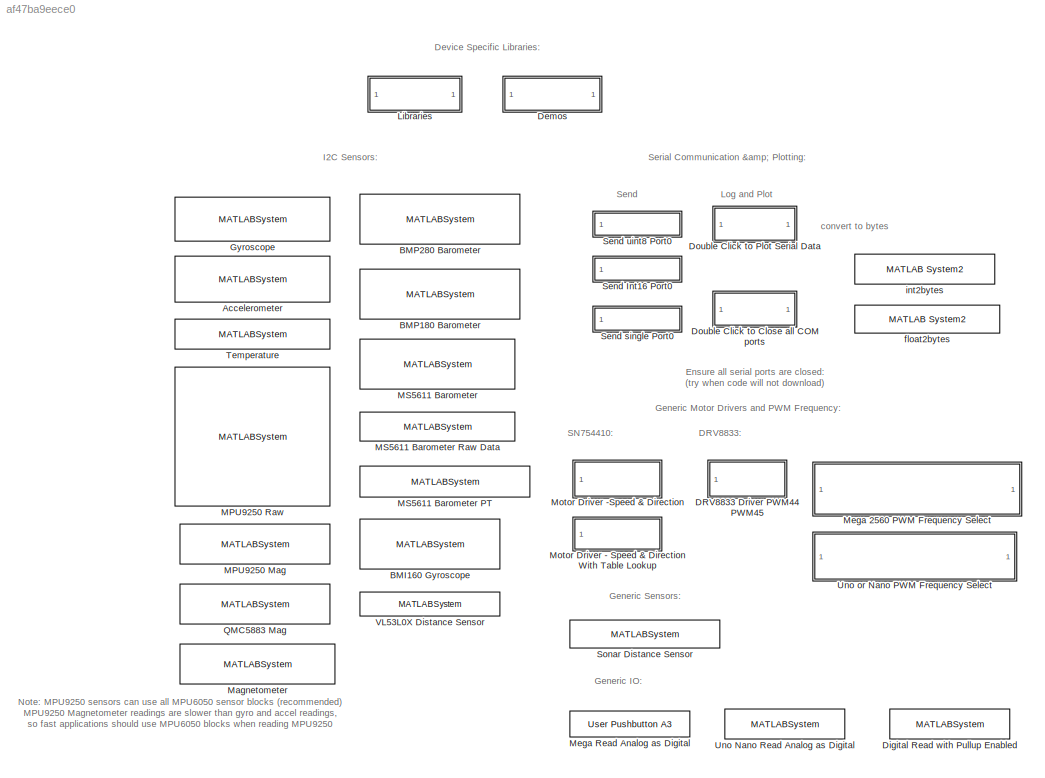
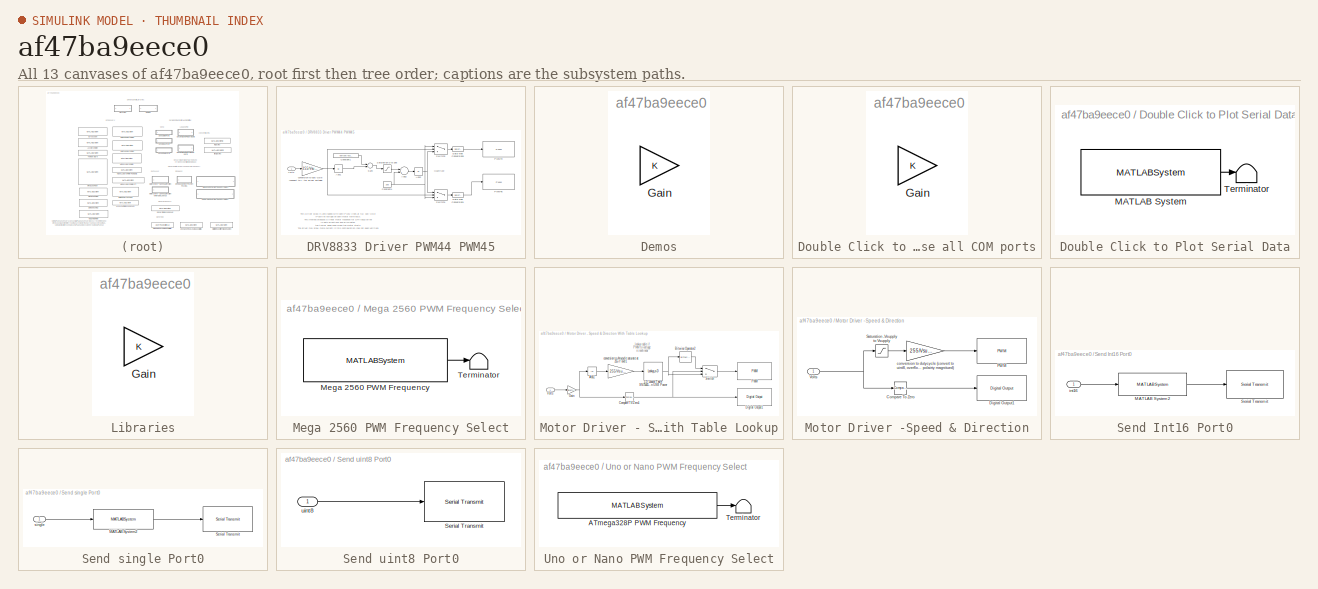
[diagram: thumbnail index - all 13 canvases of the model, root first then tree order]
MODEL slx_af47ba9eece0
KIND library
CONFIG AbsTol = auto
CONFIG FixedStep = auto
CONFIG MaxStep = auto
CONFIG MinStep = auto
CONFIG PostLoadFcn = setsysloc(bdroot)
CONFIG RelTol = 1e-3
CONFIG SampleTimeConstraint = Unconstrained
CONFIG Solver = ode45
CONFIG SolverMode = Auto
CONFIG SolverName = ode45
CONFIG StartFcn = open_system('MinSegLibrary','force')
CONFIG StartTime = 0.0
CONFIG StopTime = 10.0
BLOCK [MATLABSystem] Accelerometer
  MaskDisplay = disp('soMPU6050Accel');\nport_label('output',1,'xaccel');\nport_label('output',2,'yaccel');\nport_label('output',3,'zaccel');
  MaskType = soMPU6050Accel
  Ports = [0, 3]
  SimulateUsing = Code generation
  System = soMPU6050Accel
BLOCK [MATLABSystem] BMI160 Gyroscope
  MaskDisplay = disp('soBMI160Gyro');\nport_label('output',1,'xvel');\nport_label('output',2,'yvel');\nport_label('output',3,'zvel');
  MaskType = soBMI160Gyro
  Ports = [0, 3]
  System = soBMI160Gyro
BLOCK [MATLABSystem] BMP180 Barometer
  MaskDisplay = disp('soBMP180');\nport_label('output',1,'pres_Pa');\nport_label('output',2,'absAlt_m');\nport_label('output',3,'temp_C');
  MaskType = soBMP180
  Ports = [0, 3]
  SimulateUsing = Code generation
  System = soBMP180
BLOCK [MATLABSystem] BMP280 Barometer
  MaskDisplay = disp('soBMP280');\nport_label('output',1,'pres_Pa');\nport_label('output',2,'absAlt_m');\nport_label('output',3,'temp_C');
  MaskType = soBMP280
  Ports = [0, 3]
  SimulateUsing = Code generation
  System = soBMP280
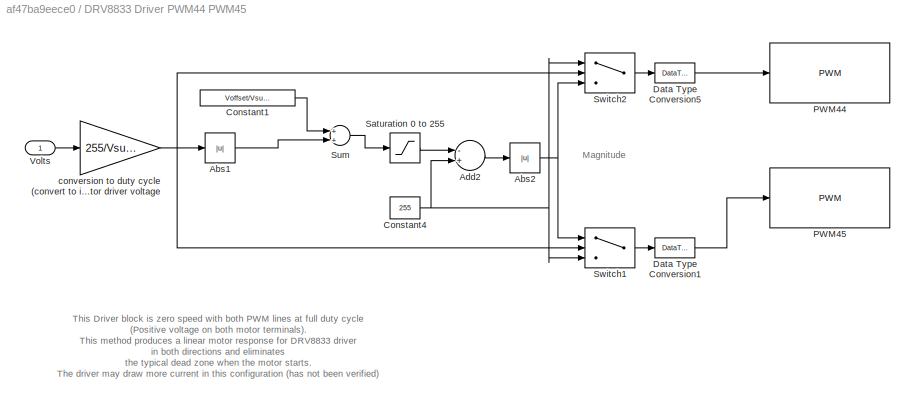
BLOCK [SubSystem] DRV8833 Driver PWM44 PWM45
  Ports = [1]
  RequestExecContextInheritance = off
BLOCK [Abs] DRV8833 Driver PWM44 PWM45/Abs1
  SaturateOnIntegerOverflow = off
BLOCK [Abs] DRV8833 Driver PWM44 PWM45/Abs2
  SaturateOnIntegerOverflow = off
BLOCK [Sum] DRV8833 Driver PWM44 PWM45/Add2
  InputSameDT = off
  Inputs = -+
  OutDataTypeStr = Inherit: Inherit via internal rule
  Ports = [2, 1]
  SaturateOnIntegerOverflow = off
BLOCK [Constant] DRV8833 Driver PWM44 PWM45/Constant1
  Value = Voffset/Vsupply*255
BLOCK [Constant] DRV8833 Driver PWM44 PWM45/Constant4
  Value = 255
BLOCK [DataTypeConversion] DRV8833 Driver PWM44 PWM45/Data Type Conversion1
  OutDataTypeStr = uint8
  RndMeth = Floor
  SaturateOnIntegerOverflow = off
BLOCK [DataTypeConversion] DRV8833 Driver PWM44 PWM45/Data Type Conversion5
  OutDataTypeStr = uint8
  RndMeth = Floor
  SaturateOnIntegerOverflow = off
BLOCK [Reference] DRV8833 Driver PWM44 PWM45/PWM44  REF=arduinolib/PWM
  Ports = [1]
  SourceBlock = arduinolib/PWM
  SourceType = Arduino PWM
  blockPlatform = arduino
  pinNumber = 44
BLOCK [Reference] DRV8833 Driver PWM44 PWM45/PWM45  REF=arduinolib/PWM
  Ports = [1]
  SourceBlock = arduinolib/PWM
  SourceType = Arduino PWM
  blockPlatform = arduino
  pinNumber = 45
BLOCK [Saturate] DRV8833 Driver PWM44 PWM45/Saturation 0 to 255
  InputPortMap = u0
  LowerLimit = 0
  Ports = [1, 1]
  UpperLimit = 255
BLOCK [Sum] DRV8833 Driver PWM44 PWM45/Sum
  InputSameDT = off
  OutDataTypeStr = Inherit: Inherit via internal rule
  Ports = [2, 1]
  SaturateOnIntegerOverflow = off
BLOCK [Switch] DRV8833 Driver PWM44 PWM45/Switch1
  InputSameDT = off
  SaturateOnIntegerOverflow = off
BLOCK [Switch] DRV8833 Driver PWM44 PWM45/Switch2
  InputSameDT = off
  SaturateOnIntegerOverflow = off
BLOCK [Inport] DRV8833 Driver PWM44 PWM45/Volts
  IconDisplay = Port number
BLOCK [Gain] DRV8833 Driver PWM44 PWM45/conversion to duty cycle (convert to int) denominator is motor driver voltage
  Gain = 255/Vsupply
  OutDataTypeStr = int16
  ParamDataTypeStr = Inherit: Inherit via internal rule
  SaturateOnIntegerOverflow = off
BLOCK [SubSystem] Demos
  Commented = on
  OpenFcn = Examples
  Ports = []
  RequestExecContextInheritance = off
BLOCK [Gain] Demos/Gain
  OutDataTypeStr = Inherit: Inherit via internal rule
  ParamDataTypeStr = Inherit: Inherit via internal rule
  SaturateOnIntegerOverflow = off
BLOCK [MATLABSystem] Digital Read with Pullup Enabled
  MaskDisplay = disp('Digital Pullup Read');\nport_label('output',1,'y');
  MaskType = soDigitalPullupRead
  Pin = 4
  Ports = [0, 1]
  System = soDigitalPullupRead
BLOCK [SubSystem] Double Click to Close all COM ports
  OpenFcn = g=msgbox('Closing all COM ports');\ndisp('closing all COM ports')\nnewobjs=instrfindall\n% Close them!\ntry,\n    fclose(newobjs);\n    delete(newobjs);\ncatch, end\npause(1), close(g);
  Ports = []
  RequestExecContextInheritance = off
BLOCK [Gain] Double Click to Close all COM ports/Gain
  OutDataTypeStr = Inherit: Inherit via internal rule
  ParamDataTypeStr = Inherit: Inherit via internal rule
  SaturateOnIntegerOverflow = off
BLOCK [SubSystem] Double Click to Plot Serial Data
  Ports = []
  RequestExecContextInheritance = off
BLOCK [MATLABSystem] Double Click to Plot Serial Data/MATLAB System
  MaskDisplay = disp('Send Data Start String');\nport_label('output',1,'y');
  MaskType = soSendDataStartString
  Ports = [0, 1]
  System = soSendDataStartString
  is_post_2015a = ~verLessThan( 'matlab', '8.6' )
BLOCK [Terminator] Double Click to Plot Serial Data/Terminator
BLOCK [MATLABSystem] Gyroscope
  DLPFmode = 0
  MaskDisplay = disp('soMPU6050Gyro');\nport_label('output',1,'xvel');\nport_label('output',2,'yvel');\nport_label('output',3,'zvel');
  MaskType = soMPU6050Gyro
  Ports = [0, 3]
  System = soMPU6050Gyro
BLOCK [SubSystem] Libraries
  OpenFcn = HardwareLibraries
  Ports = []
  RequestExecContextInheritance = off
BLOCK [Gain] Libraries/Gain
  OutDataTypeStr = Inherit: Inherit via internal rule
  ParamDataTypeStr = Inherit: Inherit via internal rule
  SaturateOnIntegerOverflow = off
BLOCK [MATLABSystem] MPU9250 Mag
  MaskDisplay = disp('soMPU9250Mag');\nport_label('output',1,'xmag');\nport_label('output',2,'ymag');\nport_label('output',3,'zmag');
  MaskType = soMPU9250Mag
  Ports = [0, 3]
  SimulateUsing = Code generation
  System = soMPU9250Mag
BLOCK [MATLABSystem] MPU9250 Raw
  MaskDisplay = disp('soMPU9250RAW');\nport_label('output',1,'xaccel');\nport_label('output',2,'yaccel');\nport_label('output',3,'zaccel');\nport_label('output',4,'xgyro');\nport_label('output',5,'ygyro');\nport_label('output',6,'zgyro');\nport_label('output',7,'xmag');\nport_label('output',8,'ymag');\nport_label('output',9,'zmag');\nport_label('output',10,'temp');
  MaskType = soMPU9250RAW
  Ports = [0, 10]
  SimulateUsing = Code generation
  System = soMPU9250RAW
BLOCK [MATLABSystem] MS5611 Barometer
  MaskDisplay = disp('soMS5611');\nport_label('output',1,'pres_Pa');\nport_label('output',2,'temp_C');\nport_label('output',3,'absAlt_m');\nport_label('output',4,'relAlt_m');
  MaskType = soMS5611
  Ports = [0, 4]
  SimulateUsing = Code generation
  System = soMS5611
BLOCK [MATLABSystem] MS5611 Barometer PT
  MaskDisplay = disp('soMS5611BaroPT');\nport_label('output',1,'pres_Pa');\nport_label('output',2,'temp_C');
  MaskType = soMS5611BaroPT
  Ports = [0, 2]
  SimulateUsing = Code generation
  System = soMS5611BaroPT
BLOCK [MATLABSystem] MS5611 Barometer Raw Data
  MaskDisplay = disp('soMS5611BaroRAW');\nport_label('output',1,'pres');\nport_label('output',2,'temp');
  MaskType = soMS5611BaroRAW
  Ports = [0, 2]
  SimulateUsing = Code generation
  System = soMS5611BaroRAW
BLOCK [MATLABSystem] Magnetometer
  MaskDisplay = disp('soHMC5883L');\nport_label('output',1,'xmag');\nport_label('output',2,'ymag');\nport_label('output',3,'zmag');
  MaskType = soHMC5883L
  Ports = [0, 3]
  SimulateUsing = Code generation
  System = soHMC5883L
BLOCK [SubSystem] Mega 2560 PWM Frequency Select
  Ports = []
  RequestExecContextInheritance = off
BLOCK [MATLABSystem] Mega 2560 PWM Frequency Select/Mega 2560 PWM Frequency
  MaskDisplay = disp('Mega PWM Frequency Select');\nport_label('output',1,'y');
  MaskType = PWMselect
  PWMFSelect = Frequency
  PWMTimer = Timer
  Ports = [0, 1]
  System = PWMselect
BLOCK [Terminator] Mega 2560 PWM Frequency Select/Terminator
BLOCK [Reference] Mega Read Analog as Digital  REF=MinSegLibrary_M2V3/User Pushbutton A3
  Pin = 3
  Ports = [0, 1]
  SourceBlock = MinSegLibrary_M2V3/User Pushbutton A3
  SourceType = soDAnalogRead
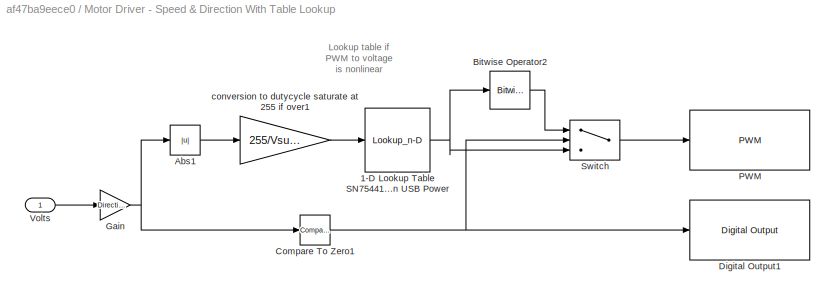
BLOCK [SubSystem] Motor Driver - Speed & Direction With Table Lookup
  Ports = [1]
  RequestExecContextInheritance = off
BLOCK [Lookup_n-D] Motor Driver - Speed & Direction With Table Lookup/1-D Lookup Table SN754410 Maxon USB Power
  BreakpointsForDimension1 = [0 3 110 255]
  BreakpointsForDimension1DataTypeStr = uint8
  ExtrapMethod = Clip
  InternalRulePriority = Speed
  NumberOfTableDimensions = 1
  OutDataTypeStr = uint8
  Ports = [1, 1]
  RndMeth = Simplest
  SaturateOnIntegerOverflow = on
  Table = [0 13 28 255]
  TableDataTypeStr = uint8
  UseLastTableValue = on
BLOCK [Abs] Motor Driver - Speed & Direction With Table Lookup/Abs1
  SaturateOnIntegerOverflow = off
BLOCK [Reference] Motor Driver - Speed & Direction With Table Lookup/Bitwise Operator2  REF=simulink/Logic and Bit
Operations/Bitwise
Operator
  BitMask = bin2dec('11011001')
  BitMaskRealWorld = Stored Integer
  NumInputPorts = 1
  Ports = [1, 1]
  SourceBlock = simulink/Logic and Bit\nOperations/Bitwise\nOperator
  SourceType = Bitwise Operator
  UseBitMask = off
  logicop = NOT
BLOCK [Reference] Motor Driver - Speed & Direction With Table Lookup/Compare To Zero1  REF=simulink/Logic and Bit
Operations/Compare
To Zero
  OutDataTypeStr = boolean
  Ports = [1, 1]
  SourceBlock = simulink/Logic and Bit\nOperations/Compare\nTo Zero
  SourceType = Compare To Zero
  ZeroCross = on
  relop = <
BLOCK [Reference] Motor Driver - Speed & Direction With Table Lookup/Digital Output1  REF=arduinolib/Digital Output
  Ports = [1]
  SourceBlock = arduinolib/Digital Output
  SourceType = Arduino Digital Output
  blockPlatform = arduino
  pinNumber = DigitalPin
BLOCK [Gain] Motor Driver - Speed & Direction With Table Lookup/Gain
  Gain = Direction
  OutDataTypeStr = Inherit: Inherit via internal rule
  ParamDataTypeStr = Inherit: Inherit via internal rule
  SaturateOnIntegerOverflow = off
BLOCK [Reference] Motor Driver - Speed & Direction With Table Lookup/PWM  REF=arduinolib/PWM
  Ports = [1]
  SourceBlock = arduinolib/PWM
  SourceType = Arduino PWM
  blockPlatform = arduino
  pinNumber = PWMPin
BLOCK [Switch] Motor Driver - Speed & Direction With Table Lookup/Switch
  Criteria = u2 ~= 0
  InputSameDT = off
  SaturateOnIntegerOverflow = off
BLOCK [Inport] Motor Driver - Speed & Direction With Table Lookup/Volts
  IconDisplay = Port number
BLOCK [Gain] Motor Driver - Speed & Direction With Table Lookup/conversion to dutycycle saturate at 255 if over1
  Gain = 255/Vsupply
  OutDataTypeStr = uint8
  ParamDataTypeStr = Inherit: Inherit via internal rule
BLOCK [SubSystem] Motor Driver -Speed & Direction
  Ports = [1]
  RequestExecContextInheritance = off
BLOCK [Reference] Motor Driver -Speed & Direction/Compare To Zero  REF=simulink/Logic and Bit
Operations/Compare
To Zero
  OutDataTypeStr = boolean
  Ports = [1, 1]
  SourceBlock = simulink/Logic and Bit\nOperations/Compare\nTo Zero
  SourceType = Compare To Zero
  ZeroCross = on
  relop = <
BLOCK [Reference] Motor Driver -Speed & Direction/Digital Output1  REF=arduinolib/Digital Output
  Ports = [1]
  SourceBlock = arduinolib/Digital Output
  SourceType = Arduino Digital Output
  blockPlatform = arduino
  pinNumber = DigatlPin
BLOCK [Reference] Motor Driver -Speed & Direction/PWM  REF=arduinolib/PWM
  Ports = [1]
  SourceBlock = arduinolib/PWM
  SourceType = Arduino PWM
  blockPlatform = arduino
  pinNumber = PWMPin
BLOCK [Saturate] Motor Driver -Speed & Direction/Saturation -Vsupply to Vsupply
  InputPortMap = u0
  LowerLimit = -Vsupply
  OutDataTypeStr = single
  Ports = [1, 1]
  UpperLimit = Vsupply
BLOCK [Inport] Motor Driver -Speed & Direction/Volts
  IconDisplay = Port number
BLOCK [Gain] Motor Driver -Speed & Direction/conversion to dutycycle (convert to uint8, overflow will provide reverse polairty magnitued)
  Gain = 255/Vsupply
  OutDataTypeStr = uint8
  ParamDataTypeStr = Inherit: Inherit via internal rule
  SaturateOnIntegerOverflow = off
BLOCK [MATLABSystem] QMC5883 Mag
  MaskDisplay = disp('soQMC5883L');\nport_label('output',1,'xmag');\nport_label('output',2,'ymag');\nport_label('output',3,'zmag');
  MaskType = soQMC5883L
  Ports = [0, 3]
  SimulateUsing = Code generation
  System = soQMC5883L
BLOCK [SubSystem] Send Int16 Port0
  Ports = [1]
  RequestExecContextInheritance = off
BLOCK [MATLABSystem] Send Int16 Port0/MATLAB System2
  MaskDisplay = disp('so_int2bytes');\nport_label('input',1,'int_in');\nport_label('output',1,'out');
  MaskType = so_int2bytes
  Ports = [1, 1]
  SimulateUsing = Code generation
  System = so_int2bytes
BLOCK [Reference] Send Int16 Port0/Serial Transmit  REF=arduinolib/Serial Transmit
  Ports = [1]
  SourceBlock = arduinolib/Serial Transmit
  SourceType = Arduino Serial Transmit
  blockPlatform = arduino
  portNumber = 0
BLOCK [Inport] Send Int16 Port0/int16
  IconDisplay = Port number
BLOCK [SubSystem] Send single Port0
  Ports = [1]
  RequestExecContextInheritance = off
BLOCK [MATLABSystem] Send single Port0/MATLAB System2
  MaskDisplay = disp('so_float2bytes');\nport_label('input',1,'fin');\nport_label('output',1,'out');
  MaskType = so_float2bytes
  Ports = [1, 1]
  SimulateUsing = Code generation
  System = so_float2bytes
BLOCK [Reference] Send single Port0/Serial Transmit  REF=arduinolib/Serial Transmit
  Ports = [1]
  SourceBlock = arduinolib/Serial Transmit
  SourceType = Arduino Serial Transmit
  blockPlatform = arduino
  portNumber = 0
BLOCK [Inport] Send single Port0/single
  IconDisplay = Port number
  LockScale = on
  OutDataTypeStr = single
BLOCK [SubSystem] Send uint8 Port0
  Ports = [1]
  RequestExecContextInheritance = off
BLOCK [Reference] Send uint8 Port0/Serial Transmit  REF=arduinolib/Serial Transmit
  Ports = [1]
  SourceBlock = arduinolib/Serial Transmit
  SourceType = Arduino Serial Transmit
  blockPlatform = arduino
  portNumber = 0
BLOCK [Inport] Send uint8 Port0/uint8
  IconDisplay = Port number
BLOCK [MATLABSystem] Sonar Distance Sensor
  EchoPin = 8
  MaskDisplay = disp('soHCSR04Sonar');\nport_label('output',1,'d_cm');
  MaskType = soHCSR04Sonar
  Ports = [0, 1]
  Sonar = 1
  System = soHCSR04Sonar
  TrigPin = 7
BLOCK [MATLABSystem] Temperature
  MaskDisplay = disp('soMPU6050Temp');\nport_label('output',1,'temp');
  MaskType = soMPU6050Temp
  Ports = [0, 1]
  SimulateUsing = Code generation
  System = soMPU6050Temp
BLOCK [MATLABSystem] Uno Nano Read Analog as Digital
  MaskDisplay = disp('Analog Digital Read');\nport_label('output',1,'y');
  MaskType = soDAnalogReadNano
  Pin = 2
  Ports = [0, 1]
  System = soDAnalogReadNano
BLOCK [SubSystem] Uno or Nano PWM Frequency Select
  Ports = []
  RequestExecContextInheritance = off
BLOCK [MATLABSystem] Uno or Nano PWM Frequency Select/ATmega328P PWM Frequency
  MaskDisplay = disp('ATmega328P PWM Frequency Select');\nport_label('output',1,'y');
  MaskType = PWMselect_uno_nano
  PWMFSelect = Frequency
  PWMTimer = Timer
  Ports = [0, 1]
  System = PWMselect_uno_nano
BLOCK [Terminator] Uno or Nano PWM Frequency Select/Terminator
BLOCK [MATLABSystem] VL53L0X Distance Sensor
  MaskDisplay = disp('soVL53L0X');\nport_label('output',1,'d_mm');
  MaskType = soVL53L0X
  Ports = [0, 1]
  SimulateUsing = Code generation
  System = soVL53L0X
BLOCK [Reference] float2bytes  REF=RASPlib/Send single Port0/MATLAB System2
  Ports = [1, 1]
  SimulateUsing = Code generation
  SourceBlock = RASPlib/Send single Port0/MATLAB System2
  SourceType = so_float2bytes
BLOCK [Reference] int2bytes  REF=RASPlib/Send Int16 Port0/MATLAB System2
  Ports = [1, 1]
  SimulateUsing = Code generation
  SourceBlock = RASPlib/Send Int16 Port0/MATLAB System2
  SourceType = so_int2bytes
ANNOTATION (root): Generic IO:
ANNOTATION (root): Generic Motor Drivers and PWM Frequency:
ANNOTATION (root): Generic Sensors:
ANNOTATION (root): Serial Communication & Plotting:
ANNOTATION (root): DRV8833:
ANNOTATION (root): Device Specific Libraries:
ANNOTATION (root): Ensure all serial ports are closed: (try when code will not download)
ANNOTATION (root): I2C Sensors:
ANNOTATION (root): Log and Plot
ANNOTATION (root): Note: MPU9250 sensors can use all MPU6050 sensor blocks (recommended) MPU9250 Magnetometer readings are slower than gyro and accel readings, so fast applications should use MPU6050 blocks when reading MPU9250
ANNOTATION (root): SN754410:
ANNOTATION (root): Send
ANNOTATION (root): convert to bytes
ANNOTATION DRV8833 Driver PWM44 PWM45: Magnitude
ANNOTATION DRV8833 Driver PWM44 PWM45: This Driver block is zero speed with both PWM lines at full duty cycle (Positive voltage on both motor terminals). This method produces a linear motor response for DRV8833 driver in both directions and eliminates the typical dead zone when the motor starts. The driver may draw more current in this configuration (has not been verified) The SN754410 driver this has no effect, so the driver could alt...<+76ch>
ANNOTATION Motor Driver - Speed & Direction With Table Lookup: Lookup table if PWM to voltage is nonlinear
LINE DRV8833 Driver PWM44 PWM45/Abs1:1 -> DRV8833 Driver PWM44 PWM45/Sum:2
NET DRV8833 Driver PWM44 PWM45/Abs2:1 -> DRV8833 Driver PWM44 PWM45/Switch1:1, DRV8833 Driver PWM44 PWM45/Switch2:3
LINE DRV8833 Driver PWM44 PWM45/Add2:1 -> DRV8833 Driver PWM44 PWM45/Abs2:1
LINE DRV8833 Driver PWM44 PWM45/Constant1:1 -> DRV8833 Driver PWM44 PWM45/Sum:1
NET DRV8833 Driver PWM44 PWM45/Constant4:1 -> DRV8833 Driver PWM44 PWM45/Add2:2, DRV8833 Driver PWM44 PWM45/Switch1:3, DRV8833 Driver PWM44 PWM45/Switch2:1
LINE DRV8833 Driver PWM44 PWM45/Data Type Conversion1:1 -> DRV8833 Driver PWM44 PWM45/PWM45:1
LINE DRV8833 Driver PWM44 PWM45/Data Type Conversion5:1 -> DRV8833 Driver PWM44 PWM45/PWM44:1
LINE DRV8833 Driver PWM44 PWM45/Saturation 0 to 255:1 -> DRV8833 Driver PWM44 PWM45/Add2:1
LINE DRV8833 Driver PWM44 PWM45/Sum:1 -> DRV8833 Driver PWM44 PWM45/Saturation 0 to 255:1
LINE DRV8833 Driver PWM44 PWM45/Switch1:1 -> DRV8833 Driver PWM44 PWM45/Data Type Conversion1:1
LINE DRV8833 Driver PWM44 PWM45/Switch2:1 -> DRV8833 Driver PWM44 PWM45/Data Type Conversion5:1
LINE DRV8833 Driver PWM44 PWM45/Volts:1 -> DRV8833 Driver PWM44 PWM45/conversion to duty cycle (convert to int) denominator is motor driver voltage:1
NET DRV8833 Driver PWM44 PWM45/conversion to duty cycle (convert to int) denominator is motor driver voltage:1 -> DRV8833 Driver PWM44 PWM45/Abs1:1, DRV8833 Driver PWM44 PWM45/Switch1:2, DRV8833 Driver PWM44 PWM45/Switch2:2
LINE Double Click to Plot Serial Data/MATLAB System:1 -> Double Click to Plot Serial Data/Terminator:1
LINE Mega 2560 PWM Frequency Select/Mega 2560 PWM Frequency:1 -> Mega 2560 PWM Frequency Select/Terminator:1
NET Motor Driver - Speed & Direction With Table Lookup/1-D Lookup Table SN754410 Maxon USB Power:1 -> Motor Driver - Speed & Direction With Table Lookup/Bitwise Operator2:1, Motor Driver - Speed & Direction With Table Lookup/Switch:3
LINE Motor Driver - Speed & Direction With Table Lookup/Abs1:1 -> Motor Driver - Speed & Direction With Table Lookup/conversion to dutycycle saturate at 255 if over1:1
LINE Motor Driver - Speed & Direction With Table Lookup/Bitwise Operator2:1 -> Motor Driver - Speed & Direction With Table Lookup/Switch:1
NET Motor Driver - Speed & Direction With Table Lookup/Compare To Zero1:1 -> Motor Driver - Speed & Direction With Table Lookup/Digital Output1:1, Motor Driver - Speed & Direction With Table Lookup/Switch:2
NET Motor Driver - Speed & Direction With Table Lookup/Gain:1 -> Motor Driver - Speed & Direction With Table Lookup/Abs1:1, Motor Driver - Speed & Direction With Table Lookup/Compare To Zero1:1
LINE Motor Driver - Speed & Direction With Table Lookup/Switch:1 -> Motor Driver - Speed & Direction With Table Lookup/PWM:1
LINE Motor Driver - Speed & Direction With Table Lookup/Volts:1 -> Motor Driver - Speed & Direction With Table Lookup/Gain:1
LINE Motor Driver - Speed & Direction With Table Lookup/conversion to dutycycle saturate at 255 if over1:1 -> Motor Driver - Speed & Direction With Table Lookup/1-D Lookup Table SN754410 Maxon USB Power:1
LINE Motor Driver -Speed & Direction/Compare To Zero:1 -> Motor Driver -Speed & Direction/Digital Output1:1
LINE Motor Driver -Speed & Direction/Saturation -Vsupply to Vsupply:1 -> Motor Driver -Speed & Direction/conversion to dutycycle (convert to uint8, overflow will provide reverse polairty magnitued):1
NET Motor Driver -Speed & Direction/Volts:1 -> Motor Driver -Speed & Direction/Compare To Zero:1, Motor Driver -Speed & Direction/Saturation -Vsupply to Vsupply:1
LINE Motor Driver -Speed & Direction/conversion to dutycycle (convert to uint8, overflow will provide reverse polairty magnitued):1 -> Motor Driver -Speed & Direction/PWM:1
LINE Send Int16 Port0/MATLAB System2:1 -> Send Int16 Port0/Serial Transmit:1
LINE Send Int16 Port0/int16:1 -> Send Int16 Port0/MATLAB System2:1
LINE Send single Port0/MATLAB System2:1 -> Send single Port0/Serial Transmit:1
LINE Send single Port0/single:1 -> Send single Port0/MATLAB System2:1
LINE Send uint8 Port0/uint8:1 -> Send uint8 Port0/Serial Transmit:1
LINE Uno or Nano PWM Frequency Select/ATmega328P PWM Frequency:1 -> Uno or Nano PWM Frequency Select/Terminator:1
note: NET lines group one-source signal fan-out (src -> all destinations, sorted); 1:1 wires keep LINE
